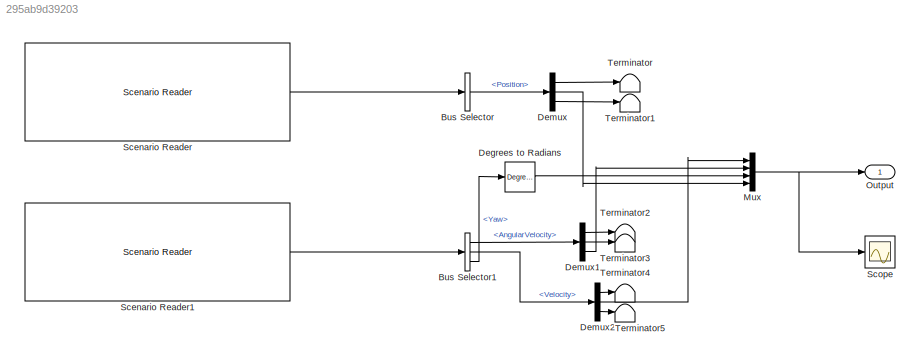
MODEL slx_295ab9d39203
KIND model
CONFIG AbsTol = auto
CONFIG EnableMultiTasking = off
CONFIG FixedStep = auto
CONFIG MaxStep = auto
CONFIG MinStep = auto
CONFIG RelTol = 1e-3
CONFIG SampleTimeConstraint = Unconstrained
CONFIG SolverName = FixedStepDiscrete
CONFIG StartTime = 0.0
CONFIG StopTime = 20
WORKSPACE source: mxarray member
WORKSPACE firstWarning = 1
WORKSPACE originalScenarioChecksum = '1C4B111A82F1CB0582BAAC63DE483F4C'
BLOCK [BusSelector] Bus Selector
  OutputSignals = Actors.Position
  Ports = [1, 1]
BLOCK [BusSelector] Bus Selector1
  OutputSignals = Actors.AngularVelocity,Actors.Velocity,Actors.Yaw
  Ports = [1, 3]
BLOCK [Reference] Degrees to Radians  REF=simulink_extras/Transformations/Degrees to
Radians
  Ports = [1, 1]
  SourceBlock = simulink_extras/Transformations/Degrees to\nRadians
  SourceProductBaseCode = SL
  SourceType = DegreesToRadians
BLOCK [Demux] Demux
  Outputs = 3
  Ports = [1, 3]
BLOCK [Demux] Demux1
  Outputs = 3
  Ports = [1, 3]
BLOCK [Demux] Demux2
  Outputs = 3
  Ports = [1, 3]
BLOCK [Mux] Mux
  DisplayOption = bar
  Ports = [4, 1]
BLOCK [Outport] Output
BLOCK [Reference] Scenario Reader  REF=drivingscenarioandsensors/Scenario Reader
  Ports = [0, 1]
  SourceBlock = drivingscenarioandsensors/Scenario Reader
  SourceProductBaseCode = DR
  SourceType = driving.scenario.internal.ScenarioReader
BLOCK [Reference] Scenario Reader1  REF=drivingscenarioandsensors/Scenario Reader
  Ports = [0, 1]
  SourceBlock = drivingscenarioandsensors/Scenario Reader
  SourceProductBaseCode = DR
  SourceType = driving.scenario.internal.ScenarioReader
BLOCK [Scope] Scope
  Floating = off
  NumInputPorts = 1
  Ports = [1]
  ScopeSpecificationString = Simulink.scopes.TimeScopeBlockCfg('CurrentConfiguration', extmgr.ConfigurationSet(extmgr.Configuration('Core','General UI',true),extmgr.Configuration('Core','Source UI',true),extmgr.Configuration('Sources','WiredSimulink',true),extmgr.Configuration('Visuals','Time Domain',true,'SerializedDisplays',{struct('MinYLimReal','-1.19242','MaxYLimReal','4.26697','YLabelReal','','MinYLimMag','0.00000','MaxY...<+1370ch>
BLOCK [Terminator] Terminator
BLOCK [Terminator] Terminator1
BLOCK [Terminator] Terminator2
BLOCK [Terminator] Terminator3
BLOCK [Terminator] Terminator4
BLOCK [Terminator] Terminator5
LINE Bus Selector1:1 -> Demux1:1
LINE Bus Selector1:2 -> Demux2:1
LINE Bus Selector1:3 -> Degrees to Radians:1
LINE Bus Selector:1 -> Demux:1
LINE Degrees to Radians:1 -> Mux:3
LINE Demux1:1 -> Terminator2:1
LINE Demux1:2 -> Terminator3:1
LINE Demux1:3 -> Mux:2
LINE Demux2:1 -> Terminator4:1
LINE Demux2:2 -> Mux:1
LINE Demux2:3 -> Terminator5:1
LINE Demux:1 -> Terminator:1
LINE Demux:2 -> Mux:4
LINE Demux:3 -> Terminator1:1
NET Mux:1 -> Output:1, Scope:1
LINE Scenario Reader1:1 -> Bus Selector1:1
LINE Scenario Reader:1 -> Bus Selector:1
note: NET lines group one-source signal fan-out (src -> all destinations, sorted); 1:1 wires keep LINE
